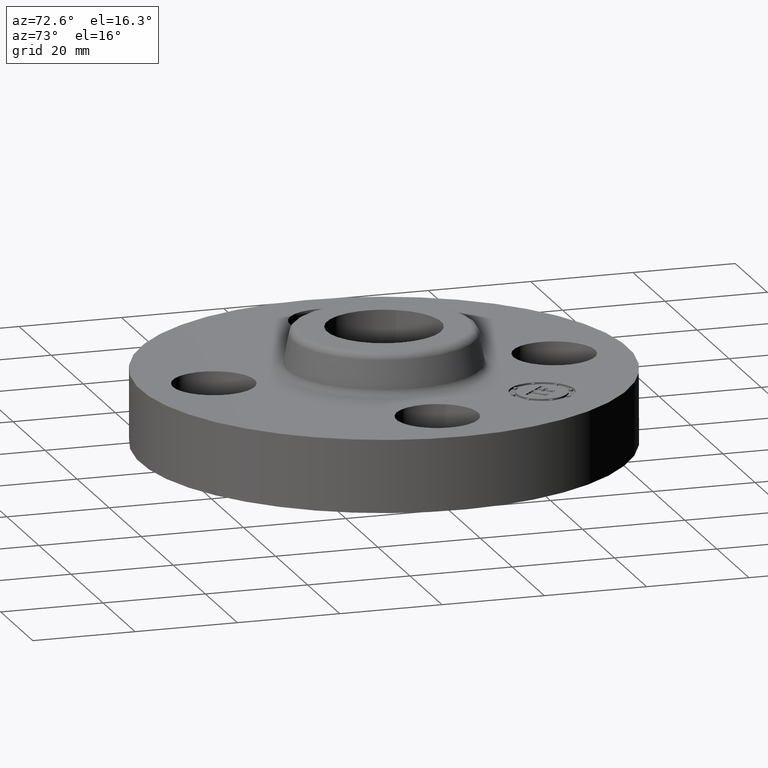
[diagram: clean part render]
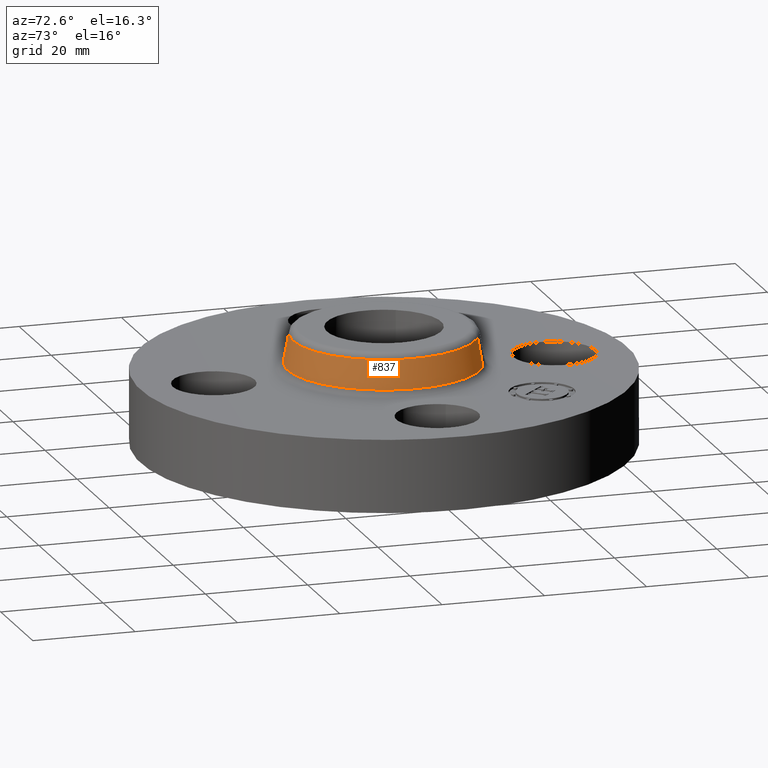
[diagram: same view with one face highlighted and labeled with its STEP entity id]
A machine part, auxiliary view. The second image highlights one B-rep face of the part: STEP entity #837.
In plain terms, the highlighted conical surface has half-angle 10 deg.
Its self-contained STEP definition (entity closure, byte-faithful):
#382=AXIS2_PLACEMENT_3D('Circle Axis2P3D',#380,#381,$) ;
#810=AXIS2_PLACEMENT_3D('Cone Axis2P3D',#807,#808,#809) ;
#814=AXIS2_PLACEMENT_3D('Circle Axis2P3D',#812,#813,$) ;
#380=CARTESIAN_POINT('Axis2P3D Location',(0.,0.,0.830418890663)) ;
#384=CARTESIAN_POINT('Vertex',(0.336709115179,0.616341901123,0.830418890663)) ;
#386=CARTESIAN_POINT('Vertex',(-0.336709115179,-0.616341901124,0.830418890663)) ;
#807=CARTESIAN_POINT('Axis2P3D Location',(0.,0.,0.830418890663)) ;
#812=CARTESIAN_POINT('Axis2P3D Location',(0.,0.,0.609581109342)) ;
#816=CARTESIAN_POINT('Vertex',(0.355377782268,0.65051466701,0.609581109342)) ;
#818=CARTESIAN_POINT('Vertex',(-0.355377782268,-0.65051466701,0.609581109342)) ;
#821=CARTESIAN_POINT('Line Origine',(0.346043448723,0.633428284066,0.720000000002)) ;
#826=CARTESIAN_POINT('Line Origine',(-0.346043448723,-0.633428284066,0.720000000002)) ;
#381=DIRECTION('Axis2P3D Direction',(-0.,0.,-0.0393700787402)) ;
#808=DIRECTION('Axis2P3D Direction',(0.,0.,-0.0393700787402)) ;
#809=DIRECTION('Axis2P3D XDirection',(0.0188750212049,0.0345504945626,0.)) ;
#813=DIRECTION('Axis2P3D Direction',(-0.,0.,-0.0393700787402)) ;
#822=DIRECTION('Vector Direction',(0.00327761303565,0.00599963041827,-0.03877195878)) ;
#827=DIRECTION('Vector Direction',(-0.00327761303565,-0.00599963041827,-0.03877195878)) ;
#823=VECTOR('Line Direction',#822,0.0393700787402) ;
#828=VECTOR('Line Direction',#827,0.0393700787402) ;
#832=ORIENTED_EDGE('',*,*,#820,.F.) ;
#833=ORIENTED_EDGE('',*,*,#825,.T.) ;
#834=ORIENTED_EDGE('',*,*,#388,.T.) ;
#835=ORIENTED_EDGE('',*,*,#830,.F.) ;
#837=ADVANCED_FACE('PartBody',(#836),#811,.T.) ;
#383=CIRCLE('generated circle',#382,0.702317853486) ;
#815=CIRCLE('generated circle',#814,0.741257512693) ;
#811=CONICAL_SURFACE('Cone',#810,0.702317853486,0.174532925199) ;
#388=EDGE_CURVE('',#385,#387,#383,.T.) ;
#820=EDGE_CURVE('',#817,#819,#815,.T.) ;
#825=EDGE_CURVE('',#817,#385,#824,.F.) ;
#830=EDGE_CURVE('',#819,#387,#829,.F.) ;
#831=EDGE_LOOP('',(#832,#833,#834,#835)) ;
#836=FACE_OUTER_BOUND('',#831,.T.) ;
#824=LINE('Line',#821,#823) ;
#829=LINE('Line',#826,#828) ;
#385=VERTEX_POINT('',#384) ;
#387=VERTEX_POINT('',#386) ;
#817=VERTEX_POINT('',#816) ;
#819=VERTEX_POINT('',#818) ;